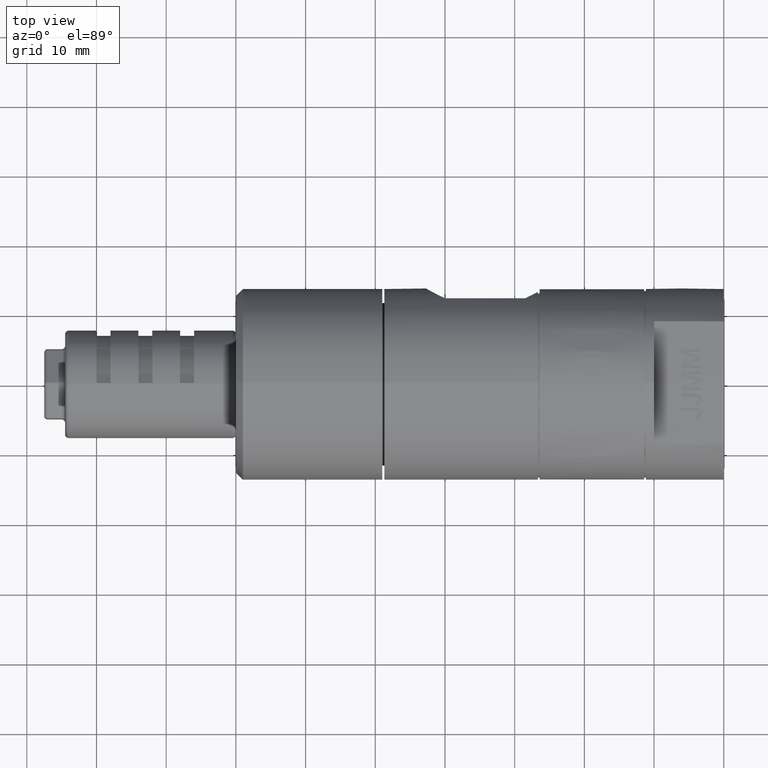
[diagram: clean part render]
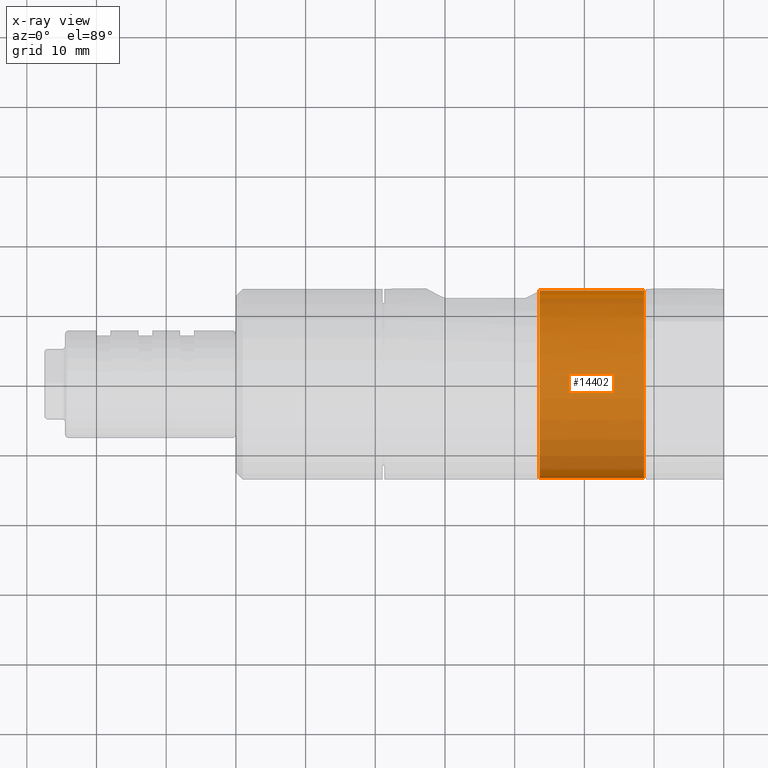
[diagram: x-ray — body ghosted, one internal face saturated and labeled with its STEP entity id]
A machine part, top view, then the same camera in x-ray: the body is ghosted and one INTERNAL B-rep face — a face not visible from any outside direction — is saturated and labeled: STEP entity #14402.
In plain terms, the highlighted cylindrical surface (partial cylindrical patch) has radius 13.45 mm, axis along (1, 0, 0).
Its self-contained STEP definition (entity closure, byte-faithful):
#63 = CIRCLE ( 'NONE', #19068, 13.44999999999999900 ) ;
#377 = VERTEX_POINT ( 'NONE', #6343 ) ;
#1754 = CARTESIAN_POINT ( 'NONE',  ( -11.43000000000000000, 13.44070310660868000, -0.5000000000000000000 ) ) ;
#1968 = CARTESIAN_POINT ( 'NONE',  ( -26.19122347528759300, 13.45020695353314900, -0.05416328203334221100 ) ) ;
#4018 = ORIENTED_EDGE ( 'NONE', *, *, #13622, .F. ) ;
#4147 = EDGE_CURVE ( 'NONE', #9238, #8601, #19472, .T. ) ;
#4460 = CARTESIAN_POINT ( 'NONE',  ( -26.43000000000000000, -13.44999999999999900, 4.557673682903400100E-015 ) ) ;
#4567 = CARTESIAN_POINT ( 'NONE',  ( -26.43000000000000000, 3.682378053668394300E-030, 1.535438443056604900E-015 ) ) ;
#4939 = VECTOR ( 'NONE', #13876, 1000.000000000000000 ) ;
#5458 = EDGE_CURVE ( 'NONE', #16746, #13659, #17499, .T. ) ;
#5466 = EDGE_LOOP ( 'NONE', ( #14529, #7083, #19153, #9149, #4018, #9765 ) ) ;
#6343 = CARTESIAN_POINT ( 'NONE',  ( -11.93000000000000000, 13.44999999999999900, -1.292507767480780000E-015 ) ) ;
#6548 = CARTESIAN_POINT ( 'NONE',  ( -26.43000000000000000, -13.44999999999999900, 3.308672780200095000E-015 ) ) ;
#7083 = ORIENTED_EDGE ( 'NONE', *, *, #14713, .T. ) ;
#7469 = DIRECTION ( 'NONE',  ( -1.000000000000000000, -4.221638438096819200E-031, -1.665334536937739700E-016 ) ) ;
#7718 = DIRECTION ( 'NONE',  ( 0.0000000000000000000, 1.000000000000000000, -1.318389841742372200E-016 ) ) ;
#7987 = AXIS2_PLACEMENT_3D ( 'NONE', #18562, #8552, #10361 ) ;
#8184 = DIRECTION ( 'NONE',  ( 1.000000000000000000, 4.221638438096819200E-031, 1.665334536937739700E-016 ) ) ;
#8552 = DIRECTION ( 'NONE',  ( 1.000000000000000000, 4.221638438096819200E-031, 1.665334536937739700E-016 ) ) ;
#8601 = VERTEX_POINT ( 'NONE', #10111 ) ;
#9020 = FACE_OUTER_BOUND ( 'NONE', #5466, .T. ) ;
#9030 = CARTESIAN_POINT ( 'NONE',  ( -11.43000000000000000, 1.001483571081361900E-029, 4.033440248463210100E-015 ) ) ;
#9099 = CARTESIAN_POINT ( 'NONE',  ( -26.43000000000000000, 13.44999999999999900, -3.707242846040499800E-015 ) ) ;
#9149 = ORIENTED_EDGE ( 'NONE', *, *, #11017, .T. ) ;
#9238 = VERTEX_POINT ( 'NONE', #21217 ) ;
#9765 = ORIENTED_EDGE ( 'NONE', *, *, #5458, .T. ) ;
#9926 = CARTESIAN_POINT ( 'NONE',  ( -11.48410752732972800, 13.44819517588640600, -0.2388713927701881000 ) ) ;
#10111 = CARTESIAN_POINT ( 'NONE',  ( -11.43000000000000000, -13.44999999999999900, 4.557673682903400100E-015 ) ) ;
#10361 = DIRECTION ( 'NONE',  ( 0.0000000000000000000, -1.000000000000000000, 1.318389841742372200E-016 ) ) ;
#11017 = EDGE_CURVE ( 'NONE', #9238, #377, #13517, .T. ) ;
#11108 = DIRECTION ( 'NONE',  ( -1.000000000000000000, -4.221638438096819200E-031, -1.665334536937739700E-016 ) ) ;
#11319 = CARTESIAN_POINT ( 'NONE',  ( -11.66845749009098800, 13.45020665599490400, -0.05435017984039715300 ) ) ;
#11449 = CARTESIAN_POINT ( 'NONE',  ( -11.43000000000000100, 13.44561283143077500, -0.3680196926621060500 ) ) ;
#11589 = CARTESIAN_POINT ( 'NONE',  ( -11.79792753849621400, 13.44999999999999900, -1.082508106590995800E-015 ) ) ;
#11615 = LINE ( 'NONE', #9099, #4939 ) ;
#11656 = CARTESIAN_POINT ( 'NONE',  ( -26.43000000000000000, 13.44070310660868000, -0.5000000000000000000 ) ) ;
#11798 = CARTESIAN_POINT ( 'NONE',  ( -25.93000000000000300, 13.44999999999999900, -3.623976119193615400E-015 ) ) ;
#13172 = CARTESIAN_POINT ( 'NONE',  ( -11.93000000000000000, 13.44999999999999900, -1.292507767480780000E-015 ) ) ;
#13456 = CARTESIAN_POINT ( 'NONE',  ( -26.37570475566052500, 13.44820039888110900, -0.2385514316157034700 ) ) ;
#13517 = B_SPLINE_CURVE_WITH_KNOTS ( 'NONE', 3,
 ( #1754, #11449, #9926, #11319, #11589, #13172 ),
 .UNSPECIFIED., .F., .F.,
 ( 4, 2, 4 ),
 ( 0.0000000000000000000, 0.0003905949363091963200, 0.0007811898726183926400 ),
 .UNSPECIFIED. ) ;
#13622 = EDGE_CURVE ( 'NONE', #16746, #377, #11615, .T. ) ;
#13659 = VERTEX_POINT ( 'NONE', #18824 ) ;
#13876 = DIRECTION ( 'NONE',  ( 1.000000000000000000, 4.221638438096819200E-031, 1.665334536937739700E-016 ) ) ;
#13952 = DIRECTION ( 'NONE',  ( 0.0000000000000000000, 1.000000000000000000, -1.318389841742372200E-016 ) ) ;
#14277 = CARTESIAN_POINT ( 'NONE',  ( -25.93000000000000300, 13.44999999999999900, -3.623976119193615400E-015 ) ) ;
#14402 = ADVANCED_FACE ( 'NONE', ( #9020 ), #14949, .F. ) ;
#14529 = ORIENTED_EDGE ( 'NONE', *, *, #20995, .T. ) ;
#14713 = EDGE_CURVE ( 'NONE', #17165, #8601, #18794, .T. ) ;
#14912 = CARTESIAN_POINT ( 'NONE',  ( -26.06207262239189100, 13.44999999999999900, -3.636312442562709800E-015 ) ) ;
#14949 = CYLINDRICAL_SURFACE ( 'NONE', #7987, 13.44999999999999900 ) ;
#15042 = CARTESIAN_POINT ( 'NONE',  ( -26.42999999999999600, 13.44561285821646700, -0.3680189726250728800 ) ) ;
#16746 = VERTEX_POINT ( 'NONE', #14277 ) ;
#17165 = VERTEX_POINT ( 'NONE', #4460 ) ;
#17249 = VECTOR ( 'NONE', #8184, 1000.000000000000000 ) ;
#17499 = B_SPLINE_CURVE_WITH_KNOTS ( 'NONE', 3,
 ( #11798, #14912, #1968, #13456, #15042, #11656 ),
 .UNSPECIFIED., .F., .F.,
 ( 4, 2, 4 ),
 ( 0.0000000000000000000, 0.0003905942708280664300, 0.0007811885416561328600 ),
 .UNSPECIFIED. ) ;
#17947 = AXIS2_PLACEMENT_3D ( 'NONE', #9030, #7469, #13952 ) ;
#18562 = CARTESIAN_POINT ( 'NONE',  ( -26.43000000000000000, 3.682378053668394300E-030, 1.535438443056604900E-015 ) ) ;
#18794 = LINE ( 'NONE', #6548, #17249 ) ;
#18824 = CARTESIAN_POINT ( 'NONE',  ( -26.43000000000000000, 13.44070310660868000, -0.5000000000000000000 ) ) ;
#19068 = AXIS2_PLACEMENT_3D ( 'NONE', #4567, #11108, #7718 ) ;
#19153 = ORIENTED_EDGE ( 'NONE', *, *, #4147, .F. ) ;
#19472 = CIRCLE ( 'NONE', #17947, 13.44999999999999900 ) ;
#20995 = EDGE_CURVE ( 'NONE', #13659, #17165, #63, .T. ) ;
#21217 = CARTESIAN_POINT ( 'NONE',  ( -11.43000000000000000, 13.44070310660868000, -0.5000000000000000000 ) ) ;